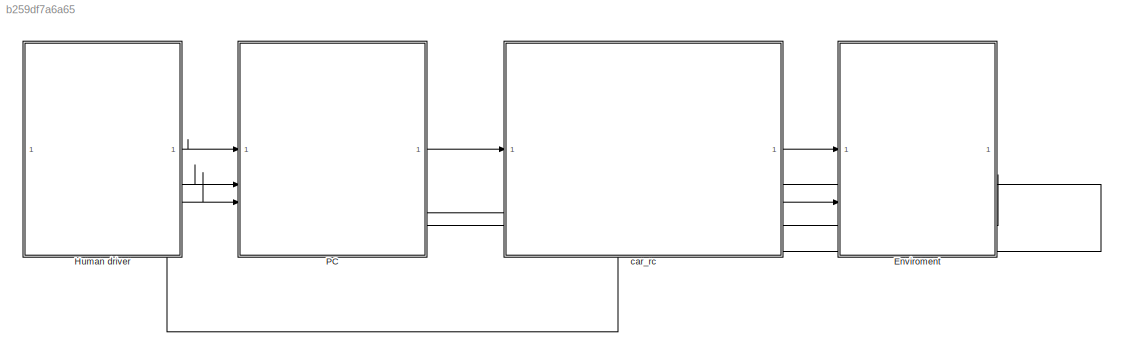
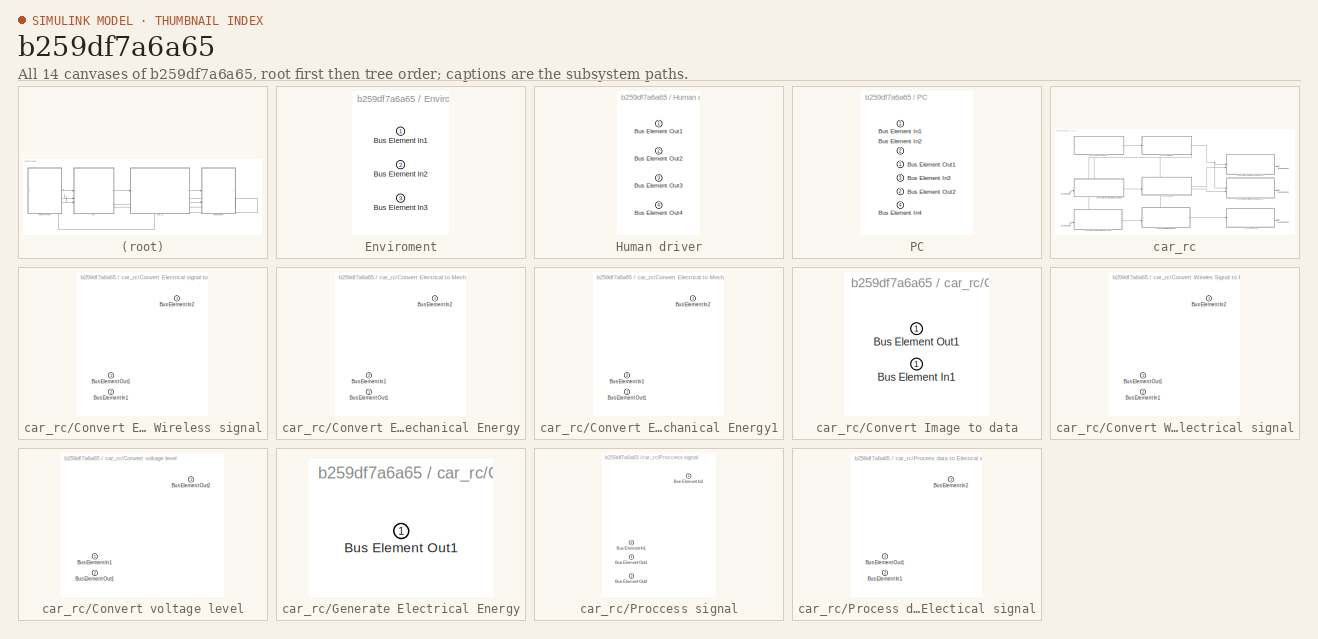
[diagram: thumbnail index - all 14 canvases of the model, root first then tree order]
MODEL slx_b259df7a6a65
KIND model
CONFIG AbsTol = auto
CONFIG EnableMultiTasking = off
CONFIG FixedStep = auto
CONFIG MaxStep = auto
CONFIG MinStep = auto
CONFIG RelTol = 1e-3
CONFIG SampleTimeConstraint = Unconstrained
CONFIG SolverName = VariableStepAuto
CONFIG StartTime = 0.0
CONFIG StopTime = 10.0
BLOCK [SubSystem] Enviroment
  PortSchema = {"entries":[{"content":{"headerSize":26,"margin":15,"minimumSpacing":25,"sides":[{"content":{"connectorIds":["In1","In3","In2"]},"type":"ConnectorPlacement.EquallySpacedRectSide","uuid":"91bad662-27d1-4d59-a5f7-74e6234eecbb"},{"content":{"side":"RIGHT"},"type":"ConnectorPlacement.EquallySpacedRectSide","uuid":"82f07ea1-3832-41bc-8b24-b125feaa4e94"},{"content":{"side":"TOP"},"type":"ConnectorPlacem...<+258ch>
BLOCK [Inport] Enviroment/Bus Element In1
BLOCK [Inport] Enviroment/Bus Element In2
  Port = 2
BLOCK [Inport] Enviroment/Bus Element In3
  Port = 3
BLOCK [SubSystem] Human driver
  PortSchema = {"entries":[{"content":{"headerSize":26,"margin":15,"minimumSpacing":25,"sides":[{"content":{"connectorIds":["Out4"]},"type":"ConnectorPlacement.EquallySpacedRectSide","uuid":"91bad662-27d1-4d59-a5f7-74e6234eecbb"},{"content":{"connectorIds":["Out1","Out2","Out3"],"side":"RIGHT"},"type":"ConnectorPlacement.EquallySpacedRectSide","uuid":"82f07ea1-3832-41bc-8b24-b125feaa4e94"},{"content":{"side":"TO...<+285ch>
BLOCK [Outport] Human driver/Bus Element Out1
BLOCK [Outport] Human driver/Bus Element Out2
  Port = 2
BLOCK [Outport] Human driver/Bus Element Out3
  Port = 3
BLOCK [Outport] Human driver/Bus Element Out4
  Port = 4
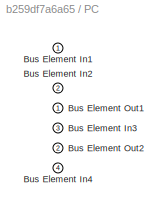
BLOCK [SubSystem] PC
  PortSchema = {"entries":[{"content":{"headerSize":26,"margin":15,"minimumSpacing":25,"sides":[{"content":{"connectorIds":["In1","In2","In3","Out2"]},"type":"ConnectorPlacement.EquallySpacedRectSide","uuid":"91bad662-27d1-4d59-a5f7-74e6234eecbb"},{"content":{"connectorIds":["Out1","In4"],"side":"RIGHT"},"type":"ConnectorPlacement.EquallySpacedRectSide","uuid":"82f07ea1-3832-41bc-8b24-b125feaa4e94"},{"content":{...<+295ch>
BLOCK [Inport] PC/Bus Element In1
BLOCK [Inport] PC/Bus Element In2
  Port = 2
BLOCK [Inport] PC/Bus Element In3
  Port = 3
BLOCK [Inport] PC/Bus Element In4
  Port = 4
BLOCK [Outport] PC/Bus Element Out1
BLOCK [Outport] PC/Bus Element Out2
  Port = 2
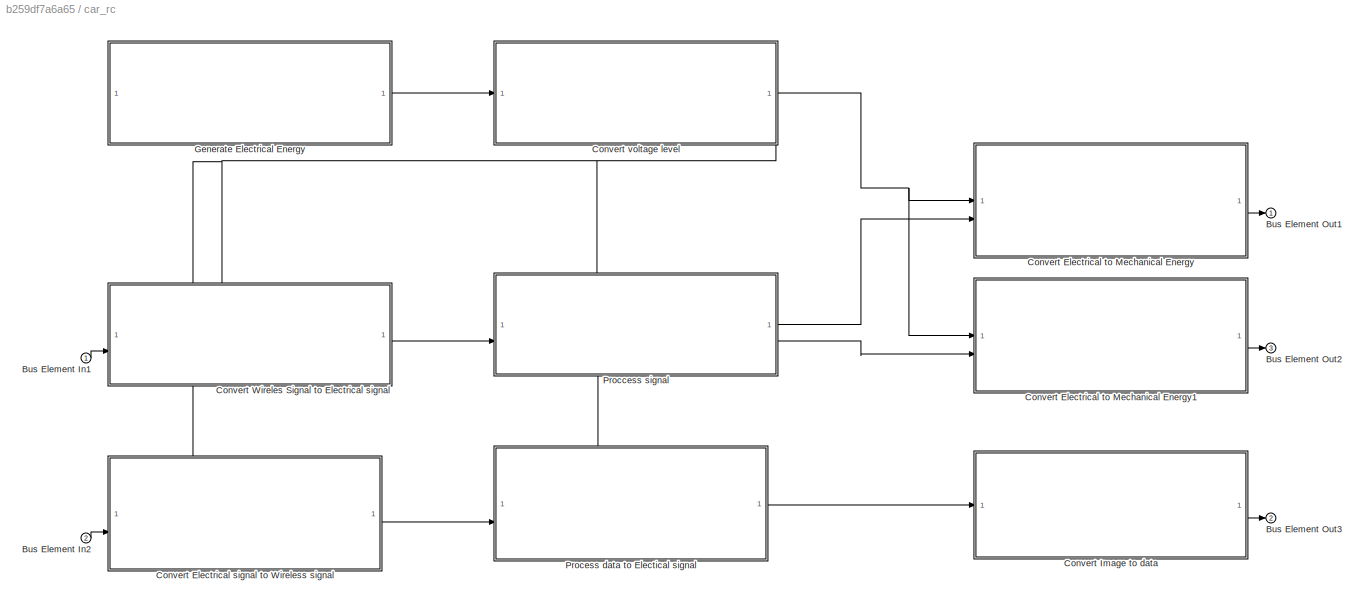
BLOCK [SubSystem] car_rc
  PortSchema = {"entries":[{"content":{"headerSize":26,"margin":15,"minimumSpacing":25,"sides":[{"content":{"connectorIds":["In1","Out2"]},"type":"ConnectorPlacement.EquallySpacedRectSide","uuid":"91bad662-27d1-4d59-a5f7-74e6234eecbb"},{"content":{"connectorIds":["Out1","Out3","In2"],"side":"RIGHT"},"type":"ConnectorPlacement.EquallySpacedRectSide","uuid":"82f07ea1-3832-41bc-8b24-b125feaa4e94"},{"content":{"side...<+290ch>
BLOCK [Inport] car_rc/Bus Element In1
BLOCK [Inport] car_rc/Bus Element In2
  Port = 2
BLOCK [Outport] car_rc/Bus Element Out1
BLOCK [Outport] car_rc/Bus Element Out2
  Port = 3
BLOCK [Outport] car_rc/Bus Element Out3
  Port = 2
BLOCK [SubSystem] car_rc/Convert Electrical signal to Wireless signal
  PortSchema = {"entries":[{"content":{"headerSize":26,"margin":15,"minimumSpacing":25,"sides":[{"content":{"connectorIds":["In1","In2"]},"type":"ConnectorPlacement.EquallySpacedRectSide","uuid":"91bad662-27d1-4d59-a5f7-74e6234eecbb"},{"content":{"connectorIds":["Out1"],"side":"RIGHT"},"type":"ConnectorPlacement.EquallySpacedRectSide","uuid":"82f07ea1-3832-41bc-8b24-b125feaa4e94"},{"content":{"side":"TOP"},"type...<+276ch>  <repeated x5 — deduplicated; at blocks: Convert Electrical signal to Wireless signal, Convert Electrical to Mechanical Energy, Convert Electrical to Mechanical Energy1, Convert Wireles Signal  to Electrical signal, Process data to Electical signal>
BLOCK [Inport] car_rc/Convert Electrical signal to Wireless signal/Bus Element In1
  Port = 2
BLOCK [Inport] car_rc/Convert Electrical signal to Wireless signal/Bus Element In2
BLOCK [Outport] car_rc/Convert Electrical signal to Wireless signal/Bus Element Out1
BLOCK [SubSystem] car_rc/Convert Electrical to Mechanical Energy
BLOCK [Inport] car_rc/Convert Electrical to Mechanical Energy/Bus Element In1
  Port = 2
BLOCK [Inport] car_rc/Convert Electrical to Mechanical Energy/Bus Element In2
BLOCK [Outport] car_rc/Convert Electrical to Mechanical Energy/Bus Element Out1
BLOCK [SubSystem] car_rc/Convert Electrical to Mechanical Energy1
BLOCK [Inport] car_rc/Convert Electrical to Mechanical Energy1/Bus Element In1
  Port = 2
BLOCK [Inport] car_rc/Convert Electrical to Mechanical Energy1/Bus Element In2
BLOCK [Outport] car_rc/Convert Electrical to Mechanical Energy1/Bus Element Out1
BLOCK [SubSystem] car_rc/Convert Image to data
  PortSchema = {"entries":[{"content":{"headerSize":26,"margin":15,"minimumSpacing":25,"sides":[{"content":{"connectorIds":["In1"]},"type":"ConnectorPlacement.EquallySpacedRectSide","uuid":"91bad662-27d1-4d59-a5f7-74e6234eecbb"},{"content":{"connectorIds":["Out1"],"side":"RIGHT"},"type":"ConnectorPlacement.EquallySpacedRectSide","uuid":"82f07ea1-3832-41bc-8b24-b125feaa4e94"},{"content":{"side":"TOP"},"type":"Con...<+270ch>
BLOCK [Inport] car_rc/Convert Image to data/Bus Element In1
BLOCK [Outport] car_rc/Convert Image to data/Bus Element Out1
BLOCK [SubSystem] car_rc/Convert Wireles Signal  to Electrical signal
BLOCK [Inport] car_rc/Convert Wireles Signal  to Electrical signal/Bus Element In1
  Port = 2
BLOCK [Inport] car_rc/Convert Wireles Signal  to Electrical signal/Bus Element In2
BLOCK [Outport] car_rc/Convert Wireles Signal  to Electrical signal/Bus Element Out1
BLOCK [SubSystem] car_rc/Convert voltage level
  PortSchema = {"entries":[{"content":{"headerSize":26,"margin":15,"minimumSpacing":25,"sides":[{"content":{"connectorIds":["In1"]},"type":"ConnectorPlacement.EquallySpacedRectSide","uuid":"91bad662-27d1-4d59-a5f7-74e6234eecbb"},{"content":{"connectorIds":["Out1"],"side":"RIGHT"},"type":"ConnectorPlacement.EquallySpacedRectSide","uuid":"82f07ea1-3832-41bc-8b24-b125feaa4e94"},{"content":{"side":"TOP"},"type":"Con...<+420ch>
BLOCK [Inport] car_rc/Convert voltage level/Bus Element In1
BLOCK [Outport] car_rc/Convert voltage level/Bus Element Out1
  Port = 2
BLOCK [Outport] car_rc/Convert voltage level/Bus Element Out2
BLOCK [SubSystem] car_rc/Generate Electrical Energy
  PortSchema = {"entries":[{"content":{"headerSize":26,"margin":15,"minimumSpacing":25,"sides":[{"content":{},"type":"ConnectorPlacement.EquallySpacedRectSide","uuid":"91bad662-27d1-4d59-a5f7-74e6234eecbb"},{"content":{"connectorIds":["Out1"],"side":"RIGHT"},"type":"ConnectorPlacement.EquallySpacedRectSide","uuid":"82f07ea1-3832-41bc-8b24-b125feaa4e94"},{"content":{"side":"TOP"},"type":"ConnectorPlacement.Equall...<+248ch>
BLOCK [Outport] car_rc/Generate Electrical Energy/Bus Element Out1
BLOCK [SubSystem] car_rc/Proccess signal
  PortSchema = {"entries":[{"content":{"headerSize":26,"margin":15,"minimumSpacing":25,"sides":[{"content":{"connectorIds":["In1","In2"]},"type":"ConnectorPlacement.EquallySpacedRectSide","uuid":"91bad662-27d1-4d59-a5f7-74e6234eecbb"},{"content":{"connectorIds":["Out1","Out2"],"side":"RIGHT"},"type":"ConnectorPlacement.EquallySpacedRectSide","uuid":"82f07ea1-3832-41bc-8b24-b125feaa4e94"},{"content":{"side":"TOP"...<+283ch>
BLOCK [Inport] car_rc/Proccess signal/Bus Element In1
  Port = 2
BLOCK [Inport] car_rc/Proccess signal/Bus Element In2
BLOCK [Outport] car_rc/Proccess signal/Bus Element Out1
BLOCK [Outport] car_rc/Proccess signal/Bus Element Out2
  Port = 2
BLOCK [SubSystem] car_rc/Process data to Electical signal
BLOCK [Inport] car_rc/Process data to Electical signal/Bus Element In1
  Port = 2
BLOCK [Inport] car_rc/Process data to Electical signal/Bus Element In2
BLOCK [Outport] car_rc/Process data to Electical signal/Bus Element Out1
LINE Human driver:1 -> PC:1
LINE Human driver:2 -> PC:2
LINE Human driver:3 -> PC:3
LINE Human driver:4 -> PC:4
LINE PC:1 -> car_rc:1
LINE PC:2 -> car_rc:2
LINE car_rc/Bus Element In1:1 -> car_rc/Convert Wireles Signal  to Electrical signal:2
LINE car_rc/Bus Element In2:1 -> car_rc/Convert Electrical signal to Wireless signal:2
LINE car_rc/Convert Electrical signal to Wireless signal:1 -> car_rc/Process data to Electical signal:2
LINE car_rc/Convert Electrical to Mechanical Energy1:1 -> car_rc/Bus Element Out2:1
LINE car_rc/Convert Electrical to Mechanical Energy:1 -> car_rc/Bus Element Out1:1
LINE car_rc/Convert Image to data:1 -> car_rc/Bus Element Out3:1
LINE car_rc/Convert Wireles Signal  to Electrical signal:1 -> car_rc/Proccess signal:2
NET car_rc/Convert voltage level:1 -> car_rc/Convert Electrical to Mechanical Energy1:1, car_rc/Convert Electrical to Mechanical Energy:1
NET car_rc/Convert voltage level:2 -> car_rc/Convert Electrical signal to Wireless signal:1, car_rc/Convert Wireles Signal  to Electrical signal:1, car_rc/Proccess signal:1, car_rc/Process data to Electical signal:1
LINE car_rc/Generate Electrical Energy:1 -> car_rc/Convert voltage level:1
LINE car_rc/Proccess signal:1 -> car_rc/Convert Electrical to Mechanical Energy:2
LINE car_rc/Proccess signal:2 -> car_rc/Convert Electrical to Mechanical Energy1:2
LINE car_rc/Process data to Electical signal:1 -> car_rc/Convert Image to data:1
LINE car_rc:1 -> Enviroment:1
LINE car_rc:2 -> Enviroment:2
LINE car_rc:3 -> Enviroment:3
note: NET lines group one-source signal fan-out (src -> all destinations, sorted); 1:1 wires keep LINE
